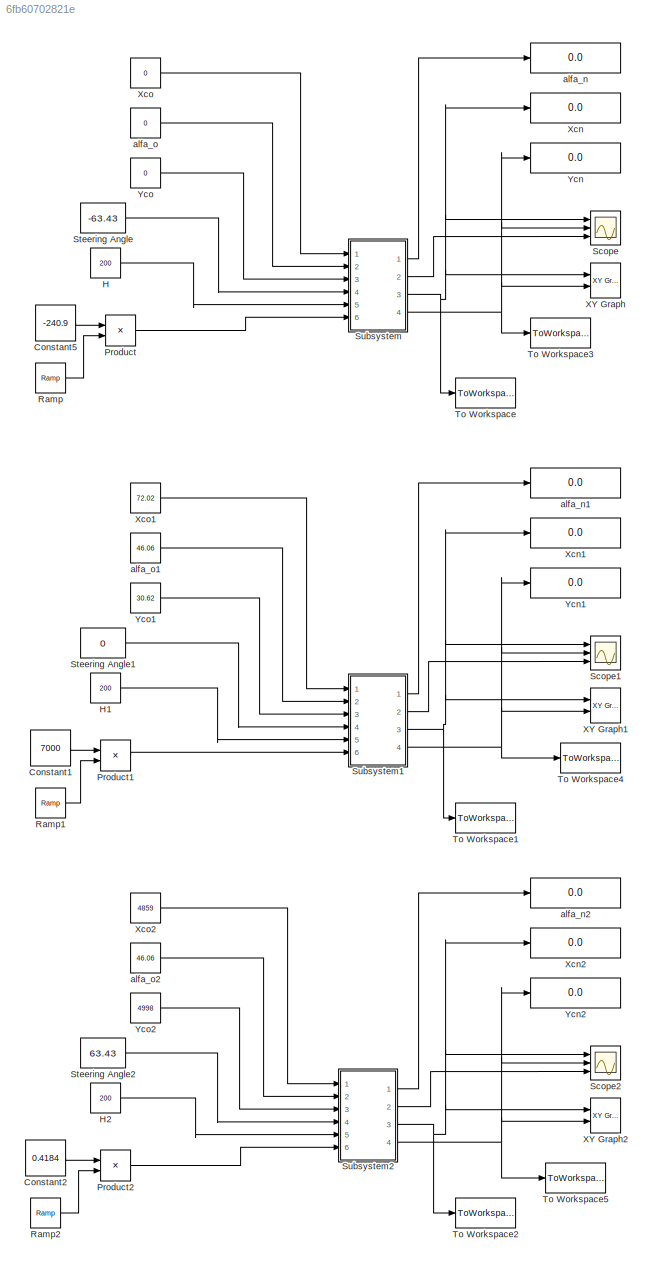
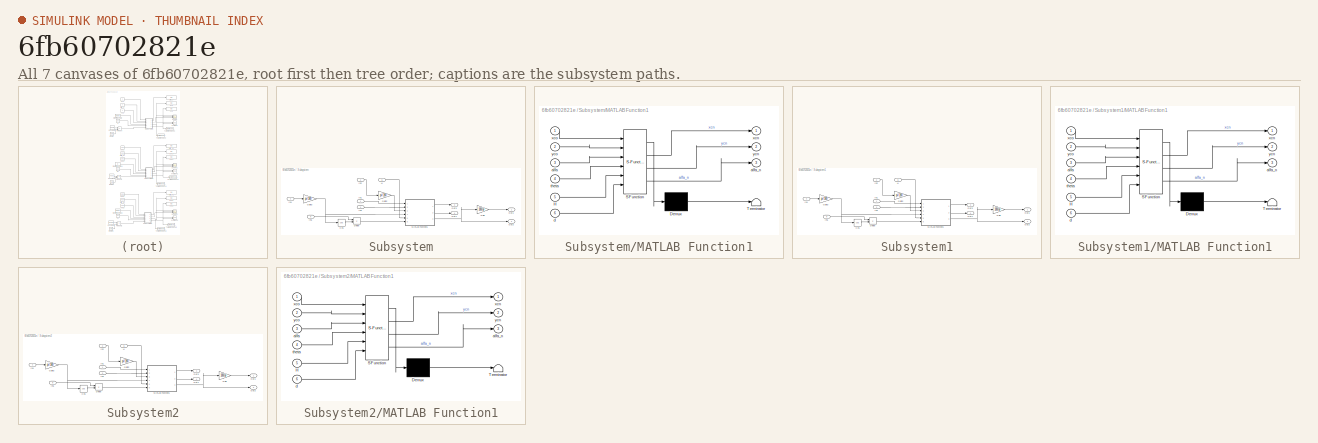
[diagram: thumbnail index - all 7 canvases of the model, root first then tree order]
MODEL slx_6fb60702821e
KIND model
CONFIG AbsTol = auto
CONFIG EnableMultiTasking = off
CONFIG FixedStep = 1.0
CONFIG MaxStep = auto
CONFIG MinStep = auto
CONFIG RelTol = 1e-9
CONFIG SampleTimeConstraint = Unconstrained
CONFIG SolverName = VariableStepAuto
CONFIG StartTime = 0.0
CONFIG StopTime = 1
BLOCK [Constant] Constant1
  Value = 7000
BLOCK [Constant] Constant2
  Value = 0.4184
BLOCK [Constant] Constant5
  Value = -240.9
BLOCK [Constant] H
  Value = 200
BLOCK [Constant] H1
  Value = 200
BLOCK [Constant] H2
  Value = 200
BLOCK [Product] Product
  Ports = [2, 1]
BLOCK [Product] Product1
  Ports = [2, 1]
BLOCK [Product] Product2
  Ports = [2, 1]
BLOCK [Reference] Ramp  REF=simulink/Sources/Ramp
  Ports = [0, 1]
  SourceBlock = simulink/Sources/Ramp
  SourceProductBaseCode = SL
  SourceType = Ramp
BLOCK [Reference] Ramp1  REF=simulink/Sources/Ramp
  Ports = [0, 1]
  SourceBlock = simulink/Sources/Ramp
  SourceProductBaseCode = SL
  SourceType = Ramp
BLOCK [Reference] Ramp2  REF=simulink/Sources/Ramp
  Ports = [0, 1]
  SourceBlock = simulink/Sources/Ramp
  SourceProductBaseCode = SL
  SourceType = Ramp
BLOCK [Scope] Scope
  Floating = off
  NumInputPorts = 3
  Ports = [3]
  ScopeSpecificationString = Simulink.scopes.TimeScopeBlockCfg('CurrentConfiguration', extmgr.ConfigurationSet(extmgr.Configuration('Core','General UI',true),extmgr.Configuration('Core','Source UI',true),extmgr.Configuration('Sources','WiredSimulink',true),extmgr.Configuration('Visuals','Time Domain',true,'SerializedDisplays',{struct('MinYLimReal','-112.50441','MaxYLimReal','12.50049','YLabelReal','','MinYLimMag',' 0.00000','...<+2760ch>
BLOCK [Scope] Scope1
  Floating = off
  NumInputPorts = 3
  Ports = [3]
  ScopeSpecificationString = Simulink.scopes.TimeScopeBlockCfg('CurrentConfiguration', extmgr.ConfigurationSet(extmgr.Configuration('Core','General UI',true),extmgr.Configuration('Core','Source UI',true),extmgr.Configuration('Sources','WiredSimulink',true,'DataLoggingVariableName','ScopeData1'),extmgr.Configuration('Visuals','Time Domain',true,'SerializedDisplays',{struct('MinYLimReal','-112.50441','MaxYLimReal','12.50049','Y...<+2799ch>
BLOCK [Scope] Scope2
  Floating = off
  NumInputPorts = 3
  Ports = [3]
  ScopeSpecificationString = Simulink.scopes.TimeScopeBlockCfg('CurrentConfiguration', extmgr.ConfigurationSet(extmgr.Configuration('Core','General UI',true),extmgr.Configuration('Core','Source UI',true),extmgr.Configuration('Sources','WiredSimulink',true,'DataLoggingVariableName','ScopeData2'),extmgr.Configuration('Visuals','Time Domain',true,'SerializedDisplays',{struct('MinYLimReal','-112.50441','MaxYLimReal','12.50049','Y...<+2799ch>
BLOCK [Constant] Steering Angle
  Value = -63.43
BLOCK [Constant] Steering Angle1
  Value = 0
BLOCK [Constant] Steering Angle2
  Value = 63.43
BLOCK [SubSystem] Subsystem
  Ports = [6, 4]
  RequestExecContextInheritance = off
BLOCK [Trigonometry] Subsystem/Cos
  Operator = cos
  Ports = [1, 1]
BLOCK [Product] Subsystem/Divide
  Inputs = */
  Ports = [2, 1]
BLOCK [Gain] Subsystem/Gain
  Gain = 180/pi
BLOCK [Gain] Subsystem/Gain2
  Gain = pi/180
BLOCK [Gain] Subsystem/Gain3
  Gain = pi/180
BLOCK [Inport] Subsystem/H
  Port = 5
BLOCK [Inport] Subsystem/In1
BLOCK [Inport] Subsystem/In2
  Port = 2
BLOCK [Inport] Subsystem/In3
  Port = 3
BLOCK [Inport] Subsystem/In4
  Port = 4
BLOCK [Inport] Subsystem/In6
  Port = 6
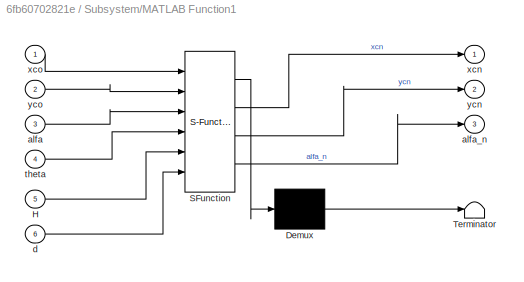
BLOCK [SubSystem] Subsystem/MATLAB Function1
  ErrorFcn = Stateflow.Translate.translate
  PermitHierarchicalResolution = ExplicitOnly
  Ports = [6, 3]
  RequestExecContextInheritance = off
  SFBlockType = MATLAB Function
  TreatAsAtomicUnit = on
BLOCK [Demux] Subsystem/MATLAB Function1/ Demux 
  Outputs = 1
  Ports = [1, 1]
BLOCK [S-Function] Subsystem/MATLAB Function1/ SFunction 
  EnableBusSupport = on
  FunctionName = sf_sfun
  PortCounts = [6 4]
  Ports = [6, 4]
  SFcnIsStateOwnerBlock = off
  SFunctionDeploymentMode = off
  Tag = Stateflow S-Function 1
BLOCK [Terminator] Subsystem/MATLAB Function1/ Terminator 
BLOCK [Inport] Subsystem/MATLAB Function1/H
  Port = 5
BLOCK [Inport] Subsystem/MATLAB Function1/alfa
  Port = 3
BLOCK [Outport] Subsystem/MATLAB Function1/alfa_n
  Port = 3
  VectorParamsAs1DForOutWhenUnconnected = off
BLOCK [Inport] Subsystem/MATLAB Function1/d
  Port = 6
BLOCK [Inport] Subsystem/MATLAB Function1/theta
  Port = 4
BLOCK [Outport] Subsystem/MATLAB Function1/xcn
  VectorParamsAs1DForOutWhenUnconnected = off
BLOCK [Inport] Subsystem/MATLAB Function1/xco
BLOCK [Outport] Subsystem/MATLAB Function1/ycn
  Port = 2
  VectorParamsAs1DForOutWhenUnconnected = off
BLOCK [Inport] Subsystem/MATLAB Function1/yco
  Port = 2
BLOCK [Outport] Subsystem/Out1
  VectorParamsAs1DForOutWhenUnconnected = off
BLOCK [Outport] Subsystem/Out2
  Port = 2
  VectorParamsAs1DForOutWhenUnconnected = off
BLOCK [Outport] Subsystem/Out3
  Port = 3
  VectorParamsAs1DForOutWhenUnconnected = off
BLOCK [Outport] Subsystem/Out4
  Port = 4
  VectorParamsAs1DForOutWhenUnconnected = off
BLOCK [SubSystem] Subsystem1
  Ports = [6, 4]
  RequestExecContextInheritance = off
BLOCK [Trigonometry] Subsystem1/Cos
  Operator = cos
  Ports = [1, 1]
BLOCK [Product] Subsystem1/Divide
  Inputs = */
  Ports = [2, 1]
BLOCK [Gain] Subsystem1/Gain
  Gain = 180/pi
BLOCK [Gain] Subsystem1/Gain2
  Gain = pi/180
BLOCK [Gain] Subsystem1/Gain3
  Gain = pi/180
BLOCK [Inport] Subsystem1/H
  Port = 5
BLOCK [Inport] Subsystem1/In1
BLOCK [Inport] Subsystem1/In2
  Port = 2
BLOCK [Inport] Subsystem1/In3
  Port = 3
BLOCK [Inport] Subsystem1/In4
  Port = 4
BLOCK [Inport] Subsystem1/In6
  Port = 6
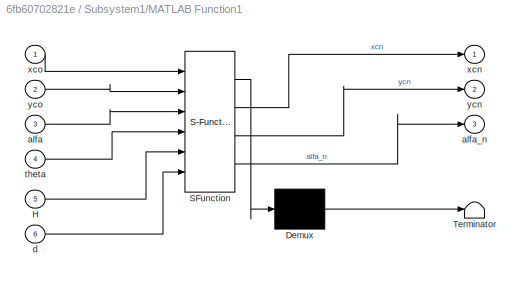
BLOCK [SubSystem] Subsystem1/MATLAB Function1
  ErrorFcn = Stateflow.Translate.translate
  PermitHierarchicalResolution = ExplicitOnly
  Ports = [6, 3]
  RequestExecContextInheritance = off
  SFBlockType = MATLAB Function
  TreatAsAtomicUnit = on
BLOCK [Demux] Subsystem1/MATLAB Function1/ Demux 
  Outputs = 1
  Ports = [1, 1]
BLOCK [S-Function] Subsystem1/MATLAB Function1/ SFunction 
  EnableBusSupport = on
  FunctionName = sf_sfun
  PortCounts = [6 4]
  Ports = [6, 4]
  SFcnIsStateOwnerBlock = off
  SFunctionDeploymentMode = off
  Tag = Stateflow S-Function 2
BLOCK [Terminator] Subsystem1/MATLAB Function1/ Terminator 
BLOCK [Inport] Subsystem1/MATLAB Function1/H
  Port = 5
BLOCK [Inport] Subsystem1/MATLAB Function1/alfa
  Port = 3
BLOCK [Outport] Subsystem1/MATLAB Function1/alfa_n
  Port = 3
  VectorParamsAs1DForOutWhenUnconnected = off
BLOCK [Inport] Subsystem1/MATLAB Function1/d
  Port = 6
BLOCK [Inport] Subsystem1/MATLAB Function1/theta
  Port = 4
BLOCK [Outport] Subsystem1/MATLAB Function1/xcn
  VectorParamsAs1DForOutWhenUnconnected = off
BLOCK [Inport] Subsystem1/MATLAB Function1/xco
BLOCK [Outport] Subsystem1/MATLAB Function1/ycn
  Port = 2
  VectorParamsAs1DForOutWhenUnconnected = off
BLOCK [Inport] Subsystem1/MATLAB Function1/yco
  Port = 2
BLOCK [Outport] Subsystem1/Out1
  VectorParamsAs1DForOutWhenUnconnected = off
BLOCK [Outport] Subsystem1/Out2
  Port = 2
  VectorParamsAs1DForOutWhenUnconnected = off
BLOCK [Outport] Subsystem1/Out3
  Port = 3
  VectorParamsAs1DForOutWhenUnconnected = off
BLOCK [Outport] Subsystem1/Out4
  Port = 4
  VectorParamsAs1DForOutWhenUnconnected = off
BLOCK [SubSystem] Subsystem2
  Ports = [6, 4]
  RequestExecContextInheritance = off
BLOCK [Trigonometry] Subsystem2/Cos
  Operator = cos
  Ports = [1, 1]
BLOCK [Product] Subsystem2/Divide
  Inputs = */
  Ports = [2, 1]
BLOCK [Gain] Subsystem2/Gain
  Gain = 180/pi
BLOCK [Gain] Subsystem2/Gain2
  Gain = pi/180
BLOCK [Gain] Subsystem2/Gain3
  Gain = pi/180
BLOCK [Inport] Subsystem2/H
  Port = 5
BLOCK [Inport] Subsystem2/In1
BLOCK [Inport] Subsystem2/In2
  Port = 2
BLOCK [Inport] Subsystem2/In3
  Port = 3
BLOCK [Inport] Subsystem2/In4
  Port = 4
BLOCK [Inport] Subsystem2/In6
  Port = 6
BLOCK [SubSystem] Subsystem2/MATLAB Function1
  ErrorFcn = Stateflow.Translate.translate
  PermitHierarchicalResolution = ExplicitOnly
  Ports = [6, 3]
  RequestExecContextInheritance = off
  SFBlockType = MATLAB Function
  TreatAsAtomicUnit = on
BLOCK [Demux] Subsystem2/MATLAB Function1/ Demux 
  Outputs = 1
  Ports = [1, 1]
BLOCK [S-Function] Subsystem2/MATLAB Function1/ SFunction 
  EnableBusSupport = on
  FunctionName = sf_sfun
  PortCounts = [6 4]
  Ports = [6, 4]
  SFcnIsStateOwnerBlock = off
  SFunctionDeploymentMode = off
  Tag = Stateflow S-Function 3
BLOCK [Terminator] Subsystem2/MATLAB Function1/ Terminator 
BLOCK [Inport] Subsystem2/MATLAB Function1/H
  Port = 5
BLOCK [Inport] Subsystem2/MATLAB Function1/alfa
  Port = 3
BLOCK [Outport] Subsystem2/MATLAB Function1/alfa_n
  Port = 3
  VectorParamsAs1DForOutWhenUnconnected = off
BLOCK [Inport] Subsystem2/MATLAB Function1/d
  Port = 6
BLOCK [Inport] Subsystem2/MATLAB Function1/theta
  Port = 4
BLOCK [Outport] Subsystem2/MATLAB Function1/xcn
  VectorParamsAs1DForOutWhenUnconnected = off
BLOCK [Inport] Subsystem2/MATLAB Function1/xco
BLOCK [Outport] Subsystem2/MATLAB Function1/ycn
  Port = 2
  VectorParamsAs1DForOutWhenUnconnected = off
BLOCK [Inport] Subsystem2/MATLAB Function1/yco
  Port = 2
BLOCK [Outport] Subsystem2/Out1
  VectorParamsAs1DForOutWhenUnconnected = off
BLOCK [Outport] Subsystem2/Out2
  Port = 2
  VectorParamsAs1DForOutWhenUnconnected = off
BLOCK [Outport] Subsystem2/Out3
  Port = 3
  VectorParamsAs1DForOutWhenUnconnected = off
BLOCK [Outport] Subsystem2/Out4
  Port = 4
  VectorParamsAs1DForOutWhenUnconnected = off
BLOCK [ToWorkspace] To Workspace
  Decimation = 2
  FixptAsFi = on
  MaxDataPoints = inf
  Ports = [1]
  SampleTime = 0.01
  VariableName = X1
BLOCK [ToWorkspace] To Workspace1
  Decimation = 2
  FixptAsFi = on
  MaxDataPoints = inf
  Ports = [1]
  SampleTime = 0.01
  VariableName = X2
BLOCK [ToWorkspace] To Workspace2
  Decimation = 2
  FixptAsFi = on
  MaxDataPoints = inf
  Ports = [1]
  SampleTime = 0.01
  VariableName = X3
BLOCK [ToWorkspace] To Workspace3
  Decimation = 2
  FixptAsFi = on
  MaxDataPoints = inf
  Ports = [1]
  SampleTime = 0.01
  VariableName = Y1
BLOCK [ToWorkspace] To Workspace4
  Decimation = 2
  FixptAsFi = on
  MaxDataPoints = inf
  Ports = [1]
  SampleTime = 0.01
  VariableName = Y2
BLOCK [ToWorkspace] To Workspace5
  Decimation = 2
  FixptAsFi = on
  MaxDataPoints = inf
  Ports = [1]
  SampleTime = 0.01
  VariableName = Y3
BLOCK [Reference] XY Graph  REF=simulink/Sinks/XY Graph
  Ports = [2]
  SourceBlock = simulink/Sinks/XY Graph
  SourceProductBaseCode = SL
  SourceType = XY scope.
BLOCK [Reference] XY Graph1  REF=simulink/Sinks/XY Graph
  Ports = [2]
  SourceBlock = simulink/Sinks/XY Graph
  SourceProductBaseCode = SL
  SourceType = XY scope.
BLOCK [Reference] XY Graph2  REF=simulink/Sinks/XY Graph
  Ports = [2]
  SourceBlock = simulink/Sinks/XY Graph
  SourceProductBaseCode = SL
  SourceType = XY scope.
BLOCK [Display] Xcn
  Decimation = 1
  Ports = [1]
BLOCK [Display] Xcn1
  Decimation = 1
  Ports = [1]
BLOCK [Display] Xcn2
  Decimation = 1
  Ports = [1]
BLOCK [Constant] Xco
  Value = 0
BLOCK [Constant] Xco1
  Value = 72.02
BLOCK [Constant] Xco2
  Value = 4859
BLOCK [Display] Ycn
  Decimation = 1
  Ports = [1]
BLOCK [Display] Ycn1
  Decimation = 1
  Ports = [1]
BLOCK [Display] Ycn2
  Decimation = 1
  Ports = [1]
BLOCK [Constant] Yco
  Value = 0
BLOCK [Constant] Yco1
  Value = 30.62
BLOCK [Constant] Yco2
  Value = 4998
BLOCK [Display] alfa_n
  Decimation = 1
  Ports = [1]
BLOCK [Display] alfa_n1
  Decimation = 1
  Ports = [1]
BLOCK [Display] alfa_n2
  Decimation = 1
  Ports = [1]
BLOCK [Constant] alfa_o
  Value = 0
BLOCK [Constant] alfa_o1
  Value = 46.06
BLOCK [Constant] alfa_o2
  Value = 46.06
LINE Constant1:1 -> Product1:1
LINE Constant2:1 -> Product2:1
LINE Constant5:1 -> Product:1
LINE H1:1 -> Subsystem1:5
LINE H2:1 -> Subsystem2:5
LINE H:1 -> Subsystem:5
LINE Product1:1 -> Subsystem1:6
LINE Product2:1 -> Subsystem2:6
LINE Product:1 -> Subsystem:6
LINE Ramp1:1 -> Product1:2
LINE Ramp2:1 -> Product2:2
LINE Ramp:1 -> Product:2
LINE Steering Angle1:1 -> Subsystem1:4
LINE Steering Angle2:1 -> Subsystem2:4
LINE Steering Angle:1 -> Subsystem:4
LINE Subsystem/Cos:1 -> Subsystem/Divide:2
LINE Subsystem/Divide:1 -> Subsystem/MATLAB Function1:6
LINE Subsystem/Gain2:1 -> Subsystem/MATLAB Function1:3
NET Subsystem/Gain3:1 -> Subsystem/Cos:1, Subsystem/MATLAB Function1:4
LINE Subsystem/Gain:1 -> Subsystem/Out1:1
LINE Subsystem/H:1 -> Subsystem/MATLAB Function1:5
LINE Subsystem/In1:1 -> Subsystem/MATLAB Function1:1
LINE Subsystem/In2:1 -> Subsystem/Gain2:1
LINE Subsystem/In3:1 -> Subsystem/MATLAB Function1:2
LINE Subsystem/In4:1 -> Subsystem/Gain3:1
LINE Subsystem/In6:1 -> Subsystem/Divide:1
LINE Subsystem/MATLAB Function1:1 -> Subsystem/Out3:1
LINE Subsystem/MATLAB Function1:2 -> Subsystem/Out4:1
NET Subsystem/MATLAB Function1:3 -> Subsystem/Gain:1, Subsystem/Out2:1
LINE Subsystem1/Cos:1 -> Subsystem1/Divide:2
LINE Subsystem1/Divide:1 -> Subsystem1/MATLAB Function1:6
LINE Subsystem1/Gain2:1 -> Subsystem1/MATLAB Function1:3
NET Subsystem1/Gain3:1 -> Subsystem1/Cos:1, Subsystem1/MATLAB Function1:4
LINE Subsystem1/Gain:1 -> Subsystem1/Out1:1
LINE Subsystem1/H:1 -> Subsystem1/MATLAB Function1:5
LINE Subsystem1/In1:1 -> Subsystem1/MATLAB Function1:1
LINE Subsystem1/In2:1 -> Subsystem1/Gain2:1
LINE Subsystem1/In3:1 -> Subsystem1/MATLAB Function1:2
LINE Subsystem1/In4:1 -> Subsystem1/Gain3:1
LINE Subsystem1/In6:1 -> Subsystem1/Divide:1
LINE Subsystem1/MATLAB Function1:1 -> Subsystem1/Out3:1
LINE Subsystem1/MATLAB Function1:2 -> Subsystem1/Out4:1
NET Subsystem1/MATLAB Function1:3 -> Subsystem1/Gain:1, Subsystem1/Out2:1
LINE Subsystem1:1 -> alfa_n1:1
LINE Subsystem1:2 -> Scope1:3
NET Subsystem1:3 -> Scope1:1, To Workspace1:1, XY Graph1:1, Xcn1:1
NET Subsystem1:4 -> Scope1:2, To Workspace4:1, XY Graph1:2, Ycn1:1
LINE Subsystem2/Cos:1 -> Subsystem2/Divide:2
LINE Subsystem2/Divide:1 -> Subsystem2/MATLAB Function1:6
LINE Subsystem2/Gain2:1 -> Subsystem2/MATLAB Function1:3
NET Subsystem2/Gain3:1 -> Subsystem2/Cos:1, Subsystem2/MATLAB Function1:4
LINE Subsystem2/Gain:1 -> Subsystem2/Out1:1
LINE Subsystem2/H:1 -> Subsystem2/MATLAB Function1:5
LINE Subsystem2/In1:1 -> Subsystem2/MATLAB Function1:1
LINE Subsystem2/In2:1 -> Subsystem2/Gain2:1
LINE Subsystem2/In3:1 -> Subsystem2/MATLAB Function1:2
LINE Subsystem2/In4:1 -> Subsystem2/Gain3:1
LINE Subsystem2/In6:1 -> Subsystem2/Divide:1
LINE Subsystem2/MATLAB Function1:1 -> Subsystem2/Out3:1
LINE Subsystem2/MATLAB Function1:2 -> Subsystem2/Out4:1
NET Subsystem2/MATLAB Function1:3 -> Subsystem2/Gain:1, Subsystem2/Out2:1
LINE Subsystem2:1 -> alfa_n2:1
LINE Subsystem2:2 -> Scope2:3
NET Subsystem2:3 -> Scope2:1, To Workspace2:1, XY Graph2:1, Xcn2:1
NET Subsystem2:4 -> Scope2:2, To Workspace5:1, XY Graph2:2, Ycn2:1
LINE Subsystem:1 -> alfa_n:1
LINE Subsystem:2 -> Scope:3
NET Subsystem:3 -> Scope:1, To Workspace:1, XY Graph:1, Xcn:1
NET Subsystem:4 -> Scope:2, To Workspace3:1, XY Graph:2, Ycn:1
LINE Xco1:1 -> Subsystem1:1
LINE Xco2:1 -> Subsystem2:1
LINE Xco:1 -> Subsystem:1
LINE Yco1:1 -> Subsystem1:3
LINE Yco2:1 -> Subsystem2:3
LINE Yco:1 -> Subsystem:3
LINE alfa_o1:1 -> Subsystem1:2
LINE alfa_o2:1 -> Subsystem2:2
LINE alfa_o:1 -> Subsystem:2
note: NET lines group one-source signal fan-out (src -> all destinations, sorted); 1:1 wires keep LINE
CHART Subsystem/MATLAB Function1 states=1 transitions=1
  STATE_LABEL 'eML_blk_kernel()'
  STATE_LABEL 'SCRIPT:\nfunction [xcn,ycn,alfa_n] = fcn(xco,yco,alfa,theta,H,d)\nL=-H/cos((pi/2)-theta);\nbeta = d/L;\nR = H *tan((pi/2)-theta);\ngama = (((pi-beta)/2)-(alfa-pi/2));\nalfa_n =(pi/2)+((alfa-pi/2)+beta) ;\nxcn=xco+2*R*sin(beta/2)*cos(gama);\nycn=yco-2*R*sin(beta/2)*sin(gama);'  <repeated x3 — deduplicated; at blocks: MATLAB Function1>
CHART Subsystem1/MATLAB Function1 states=1 transitions=1
  STATE_LABEL 'eML_blk_kernel()'
CHART Subsystem2/MATLAB Function1 states=1 transitions=1
  STATE_LABEL 'eML_blk_kernel()'
CHART  states=0 transitions=0
CHART  states=0 transitions=0
CHART  states=0 transitions=0
